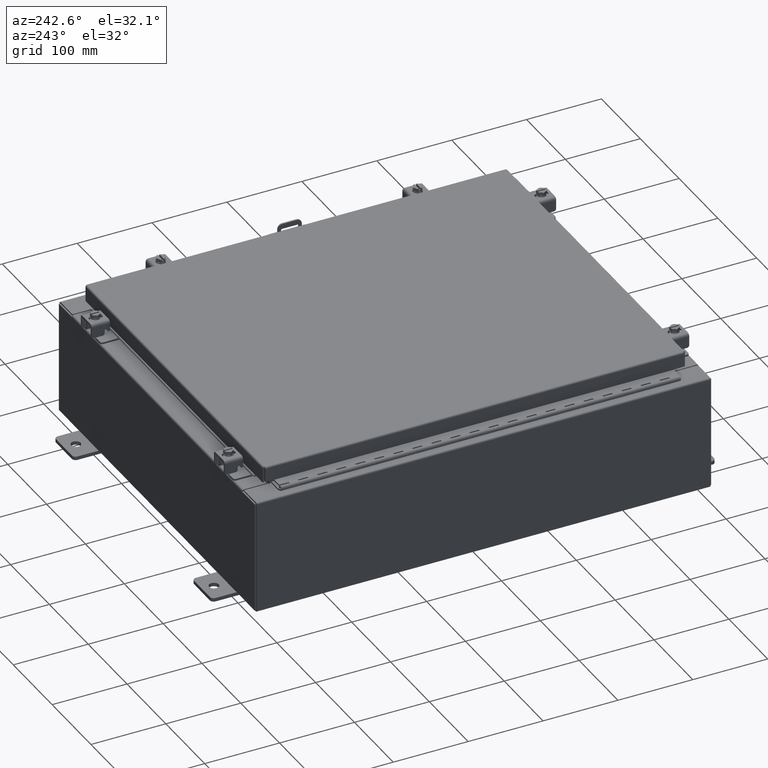
[diagram: clean part render]
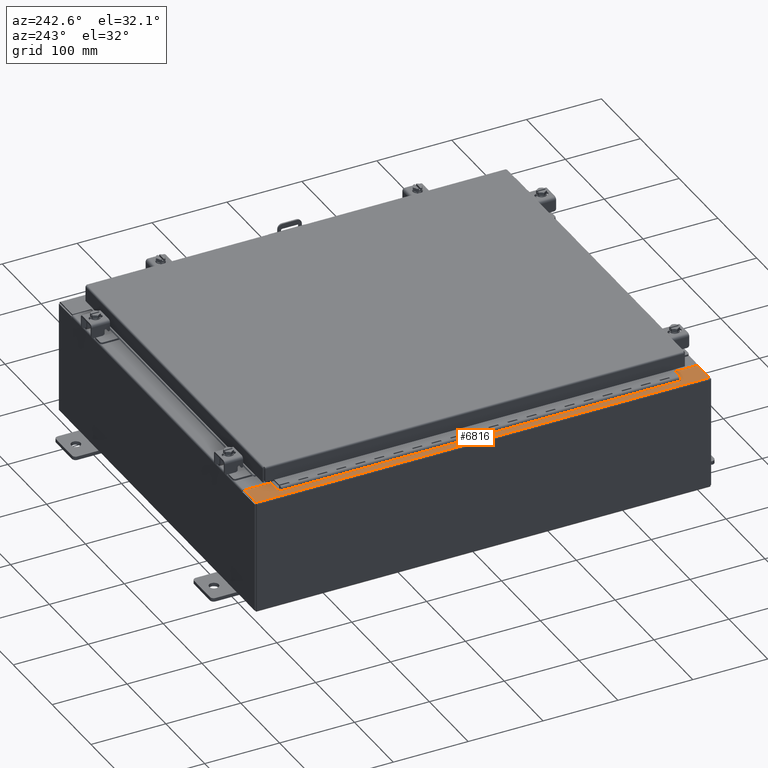
[diagram: same view with one face highlighted and labeled with its STEP entity id]
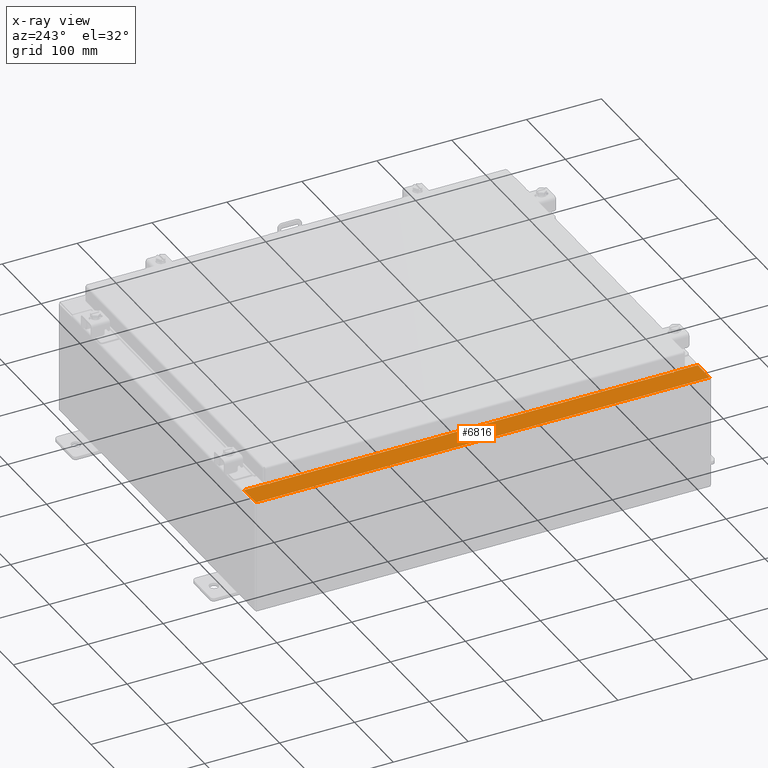
[diagram: x-ray of the same camera — body ghosted, the highlighted face saturated]
A machine part, auxiliary view. The second image highlights one B-rep face of the part: STEP entity #6816.
The next image is the same camera in x-ray: the body ghosted, the highlighted face saturated — about 0% of this face is hidden behind the body in this view.
In plain terms, the highlighted planar face has unit normal (0, 0, -1).
Its self-contained STEP definition (entity closure, byte-faithful):
#109 = VECTOR ( 'NONE', #15844, 39.37007874015748100 ) ;
#484 = ORIENTED_EDGE ( 'NONE', *, *, #23783, .F. ) ;
#766 = ORIENTED_EDGE ( 'NONE', *, *, #1694, .F. ) ;
#806 = LINE ( 'NONE', #11024, #20002 ) ;
#830 = CARTESIAN_POINT ( 'NONE',  ( -8.699700000000019500, 11.92530000000000000, 5.925300000000008000 ) ) ;
#1018 = EDGE_CURVE ( 'NONE', #32220, #12461, #14238, .T. ) ;
#1115 = CARTESIAN_POINT ( 'NONE',  ( -8.699700000000019500, -2.714776676034132700E-030, 5.925300000000008000 ) ) ;
#1293 = ORIENTED_EDGE ( 'NONE', *, *, #26297, .F. ) ;
#1523 = CARTESIAN_POINT ( 'NONE',  ( -8.750050000000019400, 10.59375000000000000, 5.925300000000008900 ) ) ;
#1662 = VECTOR ( 'NONE', #16233, 39.37007874015748100 ) ;
#1694 = EDGE_CURVE ( 'NONE', #22363, #27143, #8681, .T. ) ;
#2259 = ORIENTED_EDGE ( 'NONE', *, *, #13565, .T. ) ;
#2325 = CARTESIAN_POINT ( 'NONE',  ( -8.750050000000019400, 10.59375000000000000, 5.925300000000008000 ) ) ;
#2476 = EDGE_CURVE ( 'NONE', #19041, #3437, #806, .T. ) ;
#3037 = DIRECTION ( 'NONE',  ( -1.000000000000000000, -4.340572780400004900E-014, 2.170286390200002500E-014 ) ) ;
#3405 = VECTOR ( 'NONE', #3652, 39.37007874015748100 ) ;
#3437 = VERTEX_POINT ( 'NONE', #17223 ) ;
#3652 = DIRECTION ( 'NONE',  ( -3.120540565805878000E-031, 1.000000000000000000, -2.225807437035178000E-045 ) ) ;
#3806 = AXIS2_PLACEMENT_3D ( 'NONE', #9207, #26764, #11722 ) ;
#3809 = CARTESIAN_POINT ( 'NONE',  ( -8.712700000000019400, 10.59375000000000200, 5.925300000000008900 ) ) ;
#4159 = AXIS2_PLACEMENT_3D ( 'NONE', #22320, #7301, #24877 ) ;
#4492 = CARTESIAN_POINT ( 'NONE',  ( -2.125948780000101000E-014, -11.92529999999998000, 5.925300000000070200 ) ) ;
#4807 = VECTOR ( 'NONE', #31423, 39.37007874015748100 ) ;
#5624 = VERTEX_POINT ( 'NONE', #7851 ) ;
#5723 = ORIENTED_EDGE ( 'NONE', *, *, #17818, .T. ) ;
#5954 = CARTESIAN_POINT ( 'NONE',  ( -8.699700000000019500, -2.714776676034132700E-030, 5.925300000000008000 ) ) ;
#6623 = FACE_OUTER_BOUND ( 'NONE', #21899, .T. ) ;
#6816 = ADVANCED_FACE ( 'NONE', ( #6623 ), #19403, .F. ) ;
#7031 = DIRECTION ( 'NONE',  ( 7.132762385546378400E-015, 0.0000000000000000000, -1.000000000000000000 ) ) ;
#7287 = ORIENTED_EDGE ( 'NONE', *, *, #2476, .T. ) ;
#7301 = DIRECTION ( 'NONE',  ( -7.132762385546378400E-015, -0.0000000000000000000, 1.000000000000000000 ) ) ;
#7851 = CARTESIAN_POINT ( 'NONE',  ( -8.699700000000019500, -11.92529999999999500, 5.925300000000008000 ) ) ;
#8493 = DIRECTION ( 'NONE',  ( -1.000000000000000000, -4.084933421431486500E-032, -7.132762385546378400E-015 ) ) ;
#8681 = LINE ( 'NONE', #17961, #21240 ) ;
#9089 = CARTESIAN_POINT ( 'NONE',  ( -8.750050000000019400, -10.63109999999999300, 5.925300000000008000 ) ) ;
#9207 = CARTESIAN_POINT ( 'NONE',  ( -8.750050000000019400, -10.61242499999999300, 5.925300000000008900 ) ) ;
#10815 = EDGE_CURVE ( 'NONE', #15818, #19318, #20440, .T. ) ;
#11024 = CARTESIAN_POINT ( 'NONE',  ( -4.252457061909003800E-014, 11.92530000000000000, 5.925300000000070200 ) ) ;
#11046 = CARTESIAN_POINT ( 'NONE',  ( -8.712700000000019400, -10.59374999999999300, 5.925300000000008900 ) ) ;
#11468 = LINE ( 'NONE', #3809, #4807 ) ;
#11722 = DIRECTION ( 'NONE',  ( 1.000000000000000000, 0.0000000000000000000, 0.0000000000000000000 ) ) ;
#12461 = VERTEX_POINT ( 'NONE', #24452 ) ;
#12708 = ORIENTED_EDGE ( 'NONE', *, *, #1018, .F. ) ;
#13565 = EDGE_CURVE ( 'NONE', #29637, #19041, #30074, .T. ) ;
#14238 = LINE ( 'NONE', #15725, #109 ) ;
#15449 = DIRECTION ( 'NONE',  ( 1.000000000000000000, 0.0000000000000000000, -2.170286390200002500E-014 ) ) ;
#15725 = CARTESIAN_POINT ( 'NONE',  ( -8.712700000000019400, -10.59374999999999300, 5.925300000000008900 ) ) ;
#15790 = LINE ( 'NONE', #31234, #1662 ) ;
#15818 = VERTEX_POINT ( 'NONE', #19659 ) ;
#15844 = DIRECTION ( 'NONE',  ( -1.000000000000000000, 0.0000000000000000000, 0.0000000000000000000 ) ) ;
#16065 = VECTOR ( 'NONE', #23711, 39.37007874015748100 ) ;
#16233 = DIRECTION ( 'NONE',  ( 9.163200904511462000E-017, 1.000000000000000000, 6.535893474290389800E-031 ) ) ;
#16878 = EDGE_CURVE ( 'NONE', #19318, #20757, #16902, .T. ) ;
#16902 = LINE ( 'NONE', #1523, #22001 ) ;
#16910 = CARTESIAN_POINT ( 'NONE',  ( -8.699700000000019500, 10.63110000000000200, 5.925300000000008000 ) ) ;
#17223 = CARTESIAN_POINT ( 'NONE',  ( -9.912300000000021400, 11.92530000000000000, 5.925299999999999100 ) ) ;
#17818 = EDGE_CURVE ( 'NONE', #5624, #27143, #29402, .T. ) ;
#17961 = CARTESIAN_POINT ( 'NONE',  ( -8.750050000000019400, -10.63109999999999300, 5.925300000000008900 ) ) ;
#18058 = CARTESIAN_POINT ( 'NONE',  ( -8.699700000000019500, 10.63110000000000200, 5.925300000000008000 ) ) ;
#18353 = VERTEX_POINT ( 'NONE', #28149 ) ;
#18442 = ORIENTED_EDGE ( 'NONE', *, *, #10815, .F. ) ;
#19041 = VERTEX_POINT ( 'NONE', #830 ) ;
#19318 = VERTEX_POINT ( 'NONE', #2325 ) ;
#19403 = PLANE ( 'NONE',  #30341 ) ;
#19659 = CARTESIAN_POINT ( 'NONE',  ( -8.750050000000019400, 10.63109999999999800, 5.925300000000008000 ) ) ;
#19844 = CIRCLE ( 'NONE', #3806, 0.01867499999999949400 ) ;
#20002 = VECTOR ( 'NONE', #8493, 39.37007874015748100 ) ;
#20440 = CIRCLE ( 'NONE', #4159, 0.01867499999999949400 ) ;
#20699 = ORIENTED_EDGE ( 'NONE', *, *, #22244, .F. ) ;
#20757 = VERTEX_POINT ( 'NONE', #27703 ) ;
#20847 = EDGE_CURVE ( 'NONE', #29637, #15818, #25287, .T. ) ;
#21240 = VECTOR ( 'NONE', #15449, 39.37007874015748100 ) ;
#21829 = ORIENTED_EDGE ( 'NONE', *, *, #20847, .F. ) ;
#21899 = EDGE_LOOP ( 'NONE', ( #21829, #2259, #7287, #20699, #30559, #5723, #766, #484, #12708, #1293, #22891, #18442 ) ) ;
#22001 = VECTOR ( 'NONE', #24017, 39.37007874015748100 ) ;
#22040 = DIRECTION ( 'NONE',  ( 1.000000000000000000, 1.783190596386595000E-015, 7.132762385546378400E-015 ) ) ;
#22244 = EDGE_CURVE ( 'NONE', #18353, #3437, #15790, .T. ) ;
#22320 = CARTESIAN_POINT ( 'NONE',  ( -8.750050000000019400, 10.61242500000000000, 5.925300000000008900 ) ) ;
#22363 = VERTEX_POINT ( 'NONE', #9089 ) ;
#22891 = ORIENTED_EDGE ( 'NONE', *, *, #16878, .F. ) ;
#23711 = DIRECTION ( 'NONE',  ( -3.120540565805878000E-031, 1.000000000000000000, -2.225807437035178000E-045 ) ) ;
#23783 = EDGE_CURVE ( 'NONE', #12461, #22363, #19844, .T. ) ;
#23885 = EDGE_CURVE ( 'NONE', #18353, #5624, #30847, .T. ) ;
#24017 = DIRECTION ( 'NONE',  ( 1.000000000000000000, 0.0000000000000000000, 0.0000000000000000000 ) ) ;
#24452 = CARTESIAN_POINT ( 'NONE',  ( -8.750050000000019400, -10.59374999999999300, 5.925300000000008000 ) ) ;
#24590 = DIRECTION ( 'NONE',  ( -1.000000000000000000, 0.0000000000000000000, -7.132762385546378400E-015 ) ) ;
#24877 = DIRECTION ( 'NONE',  ( 1.000000000000000000, 0.0000000000000000000, 0.0000000000000000000 ) ) ;
#25033 = CARTESIAN_POINT ( 'NONE',  ( -8.699700000000019500, -10.63109999999999300, 5.925300000000008000 ) ) ;
#25287 = LINE ( 'NONE', #18058, #31920 ) ;
#26297 = EDGE_CURVE ( 'NONE', #20757, #32220, #11468, .T. ) ;
#26764 = DIRECTION ( 'NONE',  ( -7.132762385546378400E-015, -0.0000000000000000000, 1.000000000000000000 ) ) ;
#27143 = VERTEX_POINT ( 'NONE', #25033 ) ;
#27703 = CARTESIAN_POINT ( 'NONE',  ( -8.712700000000019400, 10.59375000000000000, 5.925300000000008900 ) ) ;
#28149 = CARTESIAN_POINT ( 'NONE',  ( -9.912300000000021400, -11.92529999999999600, 5.925299999999999100 ) ) ;
#29402 = LINE ( 'NONE', #5954, #16065 ) ;
#29637 = VERTEX_POINT ( 'NONE', #16910 ) ;
#30058 = VECTOR ( 'NONE', #22040, 39.37007874015748100 ) ;
#30074 = LINE ( 'NONE', #1115, #3405 ) ;
#30341 = AXIS2_PLACEMENT_3D ( 'NONE', #32001, #7031, #24590 ) ;
#30559 = ORIENTED_EDGE ( 'NONE', *, *, #23885, .T. ) ;
#30847 = LINE ( 'NONE', #4492, #30058 ) ;
#31234 = CARTESIAN_POINT ( 'NONE',  ( -9.912300000000019700, 11.92530000000000000, 5.925299999999999100 ) ) ;
#31423 = DIRECTION ( 'NONE',  ( -0.0000000000000000000, -1.000000000000000000, -0.0000000000000000000 ) ) ;
#31920 = VECTOR ( 'NONE', #3037, 39.37007874015748100 ) ;
#32001 = CARTESIAN_POINT ( 'NONE',  ( -4.252457061909003800E-014, 0.0000000000000000000, 5.925300000000070200 ) ) ;
#32220 = VERTEX_POINT ( 'NONE', #11046 ) ;